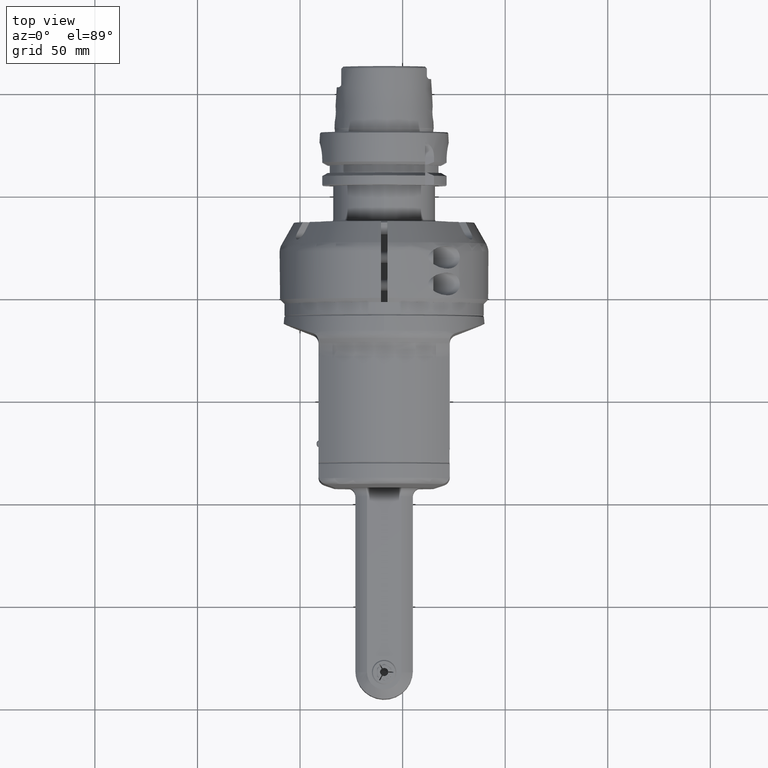
[diagram: clean part render]
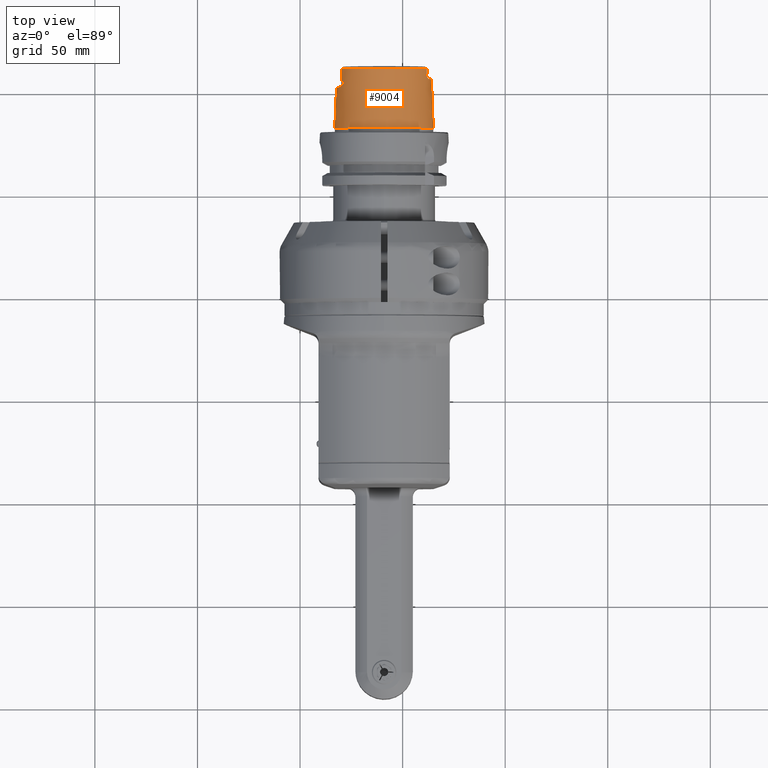
[diagram: same view with one face highlighted and labeled with its STEP entity id]
A machine part, top view. The second image highlights one B-rep face of the part: STEP entity #9004.
In plain terms, the highlighted conical surface has half-angle 2.868 deg.
Its self-contained STEP definition (entity closure, byte-faithful):
#135=FACE_BOUND('',#1355,.T.);
#136=FACE_BOUND('',#1356,.T.);
#243=(
BOUNDED_CURVE()
B_SPLINE_CURVE(2,(#14545,#14546,#14547),.UNSPECIFIED.,.F.,.F.)
B_SPLINE_CURVE_WITH_KNOTS((3,3),(1.86693789051421,2.5252025093279),
 .UNSPECIFIED.)
CURVE()
GEOMETRIC_REPRESENTATION_ITEM()
RATIONAL_B_SPLINE_CURVE((1.02439092202946,1.02616919741191,1.02616919750134))
REPRESENTATION_ITEM('')
);
#244=(
BOUNDED_CURVE()
B_SPLINE_CURVE(2,(#14614,#14615,#14616),.UNSPECIFIED.,.F.,.F.)
B_SPLINE_CURVE_WITH_KNOTS((3,3),(2.52520257553613,3.18346719434885),
 .UNSPECIFIED.)
CURVE()
GEOMETRIC_REPRESENTATION_ITEM()
RATIONAL_B_SPLINE_CURVE((1.02616919750134,1.0261691974119,1.02439092202946))
REPRESENTATION_ITEM('')
);
#599=CONICAL_SURFACE('',#9783,23.49739340079,0.0500570901447486);
#797=FACE_OUTER_BOUND('',#1354,.T.);
#1354=EDGE_LOOP('',(#6731,#6732,#6733,#6734,#6735,#6736,#6737,#6738,#6739,
#6740,#6741,#6742,#6743,#6744,#6745,#6746,#6747,#6748,#6749,#6750,#6751));
#1355=EDGE_LOOP('',(#6752,#6753));
#1356=EDGE_LOOP('',(#6754));
#1915=CIRCLE('',#9781,24.22021898401);
#1916=CIRCLE('',#9782,24.22021898401);
#1917=CIRCLE('',#9784,22.77456781756);
#1918=CIRCLE('',#9785,23.01805084955);
#1919=CIRCLE('',#9786,22.77456781756);
#1920=CIRCLE('',#9787,23.21844661614);
#1921=CIRCLE('',#9788,22.77456781756);
#2259=B_SPLINE_CURVE_WITH_KNOTS('',3,(#14474,#14475,#14476,#14477,#14478,
#14479,#14480,#14481),.UNSPECIFIED.,.F.,.F.,(4,2,2,4),(1.87852144760714,
1.96332966499537,2.14651647101209,2.20196364531662),.UNSPECIFIED.);
#2260=B_SPLINE_CURVE_WITH_KNOTS('',3,(#14483,#14484,#14485,#14486,#14487,
#14488,#14489,#14490,#14491,#14492,#14493,#14494,#14495,#14496),
 .UNSPECIFIED.,.F.,.F.,(4,2,2,2,2,2,4),(0.648088302085378,0.67504823879193,
0.706405860352622,0.747031442334294,0.813706573923428,0.931756672705542,
0.968140813905552),.UNSPECIFIED.);
#2261=B_SPLINE_CURVE_WITH_KNOTS('',3,(#14500,#14501,#14502,#14503,#14504,
#14505,#14506,#14507,#14508,#14509,#14510,#14511,#14512,#14513),
 .UNSPECIFIED.,.F.,.F.,(4,2,2,2,2,2,4),(0.250897982794745,0.32289928639896,
0.451677279406398,0.504038531696657,0.537850831835839,0.567600566613487,
0.5820221192563),.UNSPECIFIED.);
#2262=B_SPLINE_CURVE_WITH_KNOTS('',3,(#14515,#14516,#14517,#14518,#14519,
#14520,#14521,#14522),.UNSPECIFIED.,.F.,.F.,(4,2,2,4),(1.04367366398559,
1.09912083762025,1.28230764389029,1.36711586171919),.UNSPECIFIED.);
#2263=B_SPLINE_CURVE_WITH_KNOTS('',3,(#14526,#14527,#14528,#14529,#14530,
#14531,#14532,#14533,#14534,#14535,#14536,#14537,#14538,#14539,#14540,#14541,
#14542,#14543),.UNSPECIFIED.,.F.,.F.,(4,2,2,2,2,2,2,2,4),(1.62281865268316,
1.63031260903777,1.63780656539237,1.65279447810159,1.71646866782222,1.78014285754286,
1.96332966286606,2.14651646818926,2.20196364304312),.UNSPECIFIED.);
#2264=B_SPLINE_CURVE_WITH_KNOTS('',3,(#14549,#14550,#14551,#14552,#14553,
#14554,#14555,#14556,#14557,#14558,#14559,#14560,#14561,#14562,#14563,#14564,
#14565,#14566,#14567),.UNSPECIFIED.,.F.,.F.,(4,2,2,2,2,2,3,2,4),(0.591686858486119,
0.711318405574479,0.753394480811399,0.769620085407919,0.779298074344639,
0.784137068813,0.78897606328136,0.793827590149413,0.796896752134967),
 .UNSPECIFIED.);
#2265=B_SPLINE_CURVE_WITH_KNOTS('',3,(#14569,#14570,#14571,#14572,#14573,
#14574,#14575,#14576,#14577,#14578,#14579,#14580),.UNSPECIFIED.,.F.,.F.,
(4,2,2,2,2,4),(-1.35810253274609,-1.33001864997158,-1.27929112228705,-1.22120744000346,
-1.19655389716661,-1.18646391721583),.UNSPECIFIED.);
#2266=B_SPLINE_CURVE_WITH_KNOTS('',3,(#14584,#14585,#14586,#14587,#14588,
#14589,#14590,#14591,#14592,#14593),.UNSPECIFIED.,.F.,.F.,(4,2,2,2,4),(-0.500911046831581,
-0.481998817135151,-0.442781745818096,-0.333902719664991,-0.278648797669768),
 .UNSPECIFIED.);
#2267=B_SPLINE_CURVE_WITH_KNOTS('',3,(#14595,#14596,#14597,#14598,#14599,
#14600,#14601,#14602,#14603,#14604,#14605,#14606,#14607,#14608,#14609,#14610,
#14611,#14612),.UNSPECIFIED.,.F.,.F.,(4,2,2,2,2,2,2,2,4),(0.386476945536789,
0.389546107522341,0.394397634390394,0.399236628858755,0.404075623327115,
0.413753612263837,0.429979216860358,0.472055292097276,0.591686839185636),
 .UNSPECIFIED.);
#2268=B_SPLINE_CURVE_WITH_KNOTS('',3,(#14618,#14619,#14620,#14621,#14622,
#14623,#14624,#14625,#14626,#14627,#14628,#14629,#14630,#14631,#14632,#14633,
#14634,#14635),.UNSPECIFIED.,.F.,.F.,(4,2,2,2,2,2,2,2,4),(1.04367366561104,
1.09912083861657,1.2823076446389,1.46549445066122,1.5291686406059,1.59284283055058,
1.60783074329144,1.61532469966187,1.6228186560323),.UNSPECIFIED.);
#2269=B_SPLINE_CURVE_WITH_KNOTS('',3,(#14639,#14640,#14641,#14642,#14643,
#14644,#14645,#14646,#14647,#14648,#14649,#14650,#14651,#14652,#14653,#14654,
#14655,#14656,#14657),.UNSPECIFIED.,.F.,.F.,(4,2,2,2,3,2,2,2,4),(-0.56247523473426,
-0.421758779612593,-0.281042324490925,-0.140521162245463,0.,0.142680728235708,
0.285361456471416,0.427838019281762,0.570314582092107),.UNSPECIFIED.);
#2270=B_SPLINE_CURVE_WITH_KNOTS('',3,(#14658,#14659,#14660,#14661,#14662,
#14663,#14664,#14665,#14666,#14667,#14668,#14669,#14670,#14671,#14672,#14673,
#14674,#14675),.UNSPECIFIED.,.F.,.F.,(4,2,2,2,2,2,2,2,4),(0.570314582092107,
0.712791144902453,0.855267707712798,0.997948435948506,1.14062916418421,
1.28115032642968,1.42167148867514,1.56238794379681,1.70310439891847),
 .UNSPECIFIED.);
#2271=B_SPLINE_CURVE_WITH_KNOTS('',3,(#14677,#14678,#14679,#14680,#14681,
#14682,#14683,#14684,#14685,#14686,#14687,#14688,#14689,#14690,#14691,#14692,
#14693,#14694,#14695,#14696,#14697,#14698,#14699,#14700,#14701,#14702,#14703,
#14704,#14705,#14706,#14707,#14708,#14709,#14710),.UNSPECIFIED.,.T.,.F.,
(4,2,2,2,2,2,2,2,2,2,2,2,2,2,2,2,4),(-2.26557963365273,-2.12505847140727,
-1.98453730916181,-1.84382085404014,-1.70310439891847,-1.56238794379681,
-1.42167148867514,-1.28115032642968,-1.14062916418421,-0.997948435948507,
-0.855267707712798,-0.712791144902453,-0.570314582092107,-0.427838019281762,
-0.285361456471416,-0.142680728235708,0.),.UNSPECIFIED.);
#2582=LINE('',#14470,#3230);
#3230=VECTOR('',#11210,23.49739340079);
#3966=VERTEX_POINT('',#14463);
#3967=VERTEX_POINT('',#14464);
#3968=VERTEX_POINT('',#14469);
#3969=VERTEX_POINT('',#14471);
#3970=VERTEX_POINT('',#14473);
#3971=VERTEX_POINT('',#14482);
#3972=VERTEX_POINT('',#14497);
#3973=VERTEX_POINT('',#14499);
#3974=VERTEX_POINT('',#14514);
#3975=VERTEX_POINT('',#14523);
#3976=VERTEX_POINT('',#14525);
#3977=VERTEX_POINT('',#14544);
#3978=VERTEX_POINT('',#14548);
#3979=VERTEX_POINT('',#14568);
#3980=VERTEX_POINT('',#14581);
#3981=VERTEX_POINT('',#14583);
#3982=VERTEX_POINT('',#14594);
#3983=VERTEX_POINT('',#14613);
#3984=VERTEX_POINT('',#14617);
#3985=VERTEX_POINT('',#14637);
#3986=VERTEX_POINT('',#14638);
#3987=VERTEX_POINT('',#14676);
#4993=EDGE_CURVE('',#3966,#3967,#1915,.T.);
#4994=EDGE_CURVE('',#3967,#3966,#1916,.T.);
#4996=EDGE_CURVE('',#3966,#3968,#2582,.T.);
#4997=EDGE_CURVE('',#3968,#3969,#1917,.T.);
#4998=EDGE_CURVE('',#3970,#3969,#2259,.T.);
#4999=EDGE_CURVE('',#3970,#3971,#2260,.T.);
#5000=EDGE_CURVE('',#3972,#3971,#1918,.T.);
#5001=EDGE_CURVE('',#3972,#3973,#2261,.T.);
#5002=EDGE_CURVE('',#3974,#3973,#2262,.T.);
#5003=EDGE_CURVE('',#3975,#3974,#1919,.T.);
#5004=EDGE_CURVE('',#3976,#3975,#2263,.T.);
#5005=EDGE_CURVE('',#3977,#3976,#243,.T.);
#5006=EDGE_CURVE('',#3978,#3977,#2264,.T.);
#5007=EDGE_CURVE('',#3979,#3978,#2265,.T.);
#5008=EDGE_CURVE('',#3980,#3979,#1920,.T.);
#5009=EDGE_CURVE('',#3981,#3980,#2266,.T.);
#5010=EDGE_CURVE('',#3982,#3981,#2267,.T.);
#5011=EDGE_CURVE('',#3983,#3982,#244,.T.);
#5012=EDGE_CURVE('',#3984,#3983,#2268,.T.);
#5013=EDGE_CURVE('',#3984,#3968,#1921,.T.);
#5014=EDGE_CURVE('',#3985,#3986,#2269,.T.);
#5015=EDGE_CURVE('',#3986,#3985,#2270,.T.);
#5016=EDGE_CURVE('',#3987,#3987,#2271,.T.);
#6731=ORIENTED_EDGE('',*,*,#4993,.T.);
#6732=ORIENTED_EDGE('',*,*,#4994,.T.);
#6733=ORIENTED_EDGE('',*,*,#4996,.T.);
#6734=ORIENTED_EDGE('',*,*,#4997,.T.);
#6735=ORIENTED_EDGE('',*,*,#4998,.F.);
#6736=ORIENTED_EDGE('',*,*,#4999,.T.);
#6737=ORIENTED_EDGE('',*,*,#5000,.F.);
#6738=ORIENTED_EDGE('',*,*,#5001,.T.);
#6739=ORIENTED_EDGE('',*,*,#5002,.F.);
#6740=ORIENTED_EDGE('',*,*,#5003,.F.);
#6741=ORIENTED_EDGE('',*,*,#5004,.F.);
#6742=ORIENTED_EDGE('',*,*,#5005,.F.);
#6743=ORIENTED_EDGE('',*,*,#5006,.F.);
#6744=ORIENTED_EDGE('',*,*,#5007,.F.);
#6745=ORIENTED_EDGE('',*,*,#5008,.F.);
#6746=ORIENTED_EDGE('',*,*,#5009,.F.);
#6747=ORIENTED_EDGE('',*,*,#5010,.F.);
#6748=ORIENTED_EDGE('',*,*,#5011,.F.);
#6749=ORIENTED_EDGE('',*,*,#5012,.F.);
#6750=ORIENTED_EDGE('',*,*,#5013,.T.);
#6751=ORIENTED_EDGE('',*,*,#4996,.F.);
#6752=ORIENTED_EDGE('',*,*,#5014,.T.);
#6753=ORIENTED_EDGE('',*,*,#5015,.T.);
#6754=ORIENTED_EDGE('',*,*,#5016,.T.);
#9004=ADVANCED_FACE('',(#797,#135,#136),#599,.T.);
#9781=AXIS2_PLACEMENT_3D('',#14465,#11203,#11204);
#9782=AXIS2_PLACEMENT_3D('',#14466,#11205,#11206);
#9783=AXIS2_PLACEMENT_3D('',#14468,#11208,#11209);
#9784=AXIS2_PLACEMENT_3D('',#14472,#11211,#11212);
#9785=AXIS2_PLACEMENT_3D('',#14498,#11213,#11214);
#9786=AXIS2_PLACEMENT_3D('',#14524,#11215,#11216);
#9787=AXIS2_PLACEMENT_3D('',#14582,#11217,#11218);
#9788=AXIS2_PLACEMENT_3D('',#14636,#11219,#11220);
#11203=DIRECTION('center_axis',(0.,0.,1.));
#11204=DIRECTION('ref_axis',(-0.707106781186547,-0.707106781186547,0.));
#11205=DIRECTION('center_axis',(0.,0.,1.));
#11206=DIRECTION('ref_axis',(-0.707106781186547,-0.707106781186547,0.));
#11208=DIRECTION('center_axis',(0.,0.,-1.));
#11209=DIRECTION('ref_axis',(0.707106781186548,0.707106781186548,0.));
#11210=DIRECTION('',(0.0353809278297194,0.0353809278297194,0.998747405449354));
#11211=DIRECTION('center_axis',(0.,0.,-1.));
#11212=DIRECTION('ref_axis',(-0.707106781186547,-0.707106781186547,0.));
#11213=DIRECTION('center_axis',(0.,0.,1.));
#11214=DIRECTION('ref_axis',(0.310247952795186,0.950655672568357,0.));
#11215=DIRECTION('center_axis',(0.,0.,1.));
#11216=DIRECTION('ref_axis',(1.,0.,0.));
#11217=DIRECTION('center_axis',(0.,0.,1.));
#11218=DIRECTION('ref_axis',(-0.318847860778003,-0.94780590928591,0.));
#11219=DIRECTION('center_axis',(0.,0.,-1.));
#11220=DIRECTION('ref_axis',(-0.707106781186547,-0.707106781186547,0.));
#14463=CARTESIAN_POINT('',(-17.12628108542,-17.12628108542,52.99912114642));
#14464=CARTESIAN_POINT('',(17.1262810854204,17.1262810854204,52.9991211464186));
#14465=CARTESIAN_POINT('Origin',(0.,0.,52.99912114642));
#14466=CARTESIAN_POINT('Origin',(0.,0.,52.99912114642));
#14468=CARTESIAN_POINT('Origin',(0.,0.,67.427082286));
#14469=CARTESIAN_POINT('',(-16.1040513423943,-16.1040513423943,81.8550434255811));
#14470=CARTESIAN_POINT('',(-16.6151662139066,-16.6151662139066,67.427082286));
#14471=CARTESIAN_POINT('',(-9.117654363463,20.86981835535,81.85504342558));
#14472=CARTESIAN_POINT('Origin',(0.,0.,81.85504342558));
#14473=CARTESIAN_POINT('',(-9.610775788882,20.83290092553,78.495));
#14474=CARTESIAN_POINT('Ctrl Pts',(-9.61077578889373,20.8329009255282,78.4950000000022));
#14475=CARTESIAN_POINT('Ctrl Pts',(-9.55850786932113,20.8413724806425,78.7784904282741));
#14476=CARTESIAN_POINT('Ctrl Pts',(-9.50986699995181,20.8478073405863,79.0652482027057));
#14477=CARTESIAN_POINT('Ctrl Pts',(-9.36366646758571,20.863821774484,79.9801565585002));
#14478=CARTESIAN_POINT('Ctrl Pts',(-9.27459532051356,20.8685085877053,80.6183430761416));
#14479=CARTESIAN_POINT('Ctrl Pts',(-9.16631082824764,20.8700624475187,81.4611270539247));
#14480=CARTESIAN_POINT('Ctrl Pts',(-9.14172559906328,20.8700887194267,81.6577434629838));
#14481=CARTESIAN_POINT('Ctrl Pts',(-9.11765436347179,20.8698183553477,81.8550434255811));
#14482=CARTESIAN_POINT('',(-7.141303153407,21.88224061159,76.995));
#14483=CARTESIAN_POINT('Ctrl Pts',(-9.61077578889373,20.8329009255283,78.4950000000022));
#14484=CARTESIAN_POINT('Ctrl Pts',(-9.61973394568024,20.8314489924963,78.4464128030236));
#14485=CARTESIAN_POINT('Ctrl Pts',(-9.62073721834895,20.8336401790428,78.3983101102748));
#14486=CARTESIAN_POINT('Ctrl Pts',(-9.60554521151347,20.8464278881812,78.2935608657479));
#14487=CARTESIAN_POINT('Ctrl Pts',(-9.58707640182997,20.8578578636761,78.240706969117));
#14488=CARTESIAN_POINT('Ctrl Pts',(-9.53199317457096,20.8893183107881,78.1277996840116));
#14489=CARTESIAN_POINT('Ctrl Pts',(-9.48448009125569,20.9150585072333,78.0552687868475));
#14490=CARTESIAN_POINT('Ctrl Pts',(-9.28874691392544,21.0151373924235,77.8336478720117));
#14491=CARTESIAN_POINT('Ctrl Pts',(-9.11993002449012,21.0971469157375,77.693710144837));
#14492=CARTESIAN_POINT('Ctrl Pts',(-8.60152235861784,21.3346001590644,77.3471930600794));
#14493=CARTESIAN_POINT('Ctrl Pts',(-8.1402860872223,21.5309104117372,77.1244955955363));
#14494=CARTESIAN_POINT('Ctrl Pts',(-7.45228581516806,21.77828244444,77.0080869359226));
#14495=CARTESIAN_POINT('Ctrl Pts',(-7.29415485282921,21.8323572224781,76.9949999999997));
#14496=CARTESIAN_POINT('Ctrl Pts',(-7.14130315340726,21.8822406115908,76.995));
#14497=CARTESIAN_POINT('',(7.141303153408,21.88224061159,76.995));
#14498=CARTESIAN_POINT('Origin',(0.,0.,76.995));
#14499=CARTESIAN_POINT('',(9.610775788879,20.83290092553,78.49500000001));
#14500=CARTESIAN_POINT('Ctrl Pts',(7.14130315340816,21.8822406115905,76.995));
#14501=CARTESIAN_POINT('Ctrl Pts',(7.41363694008591,21.7933640580372,76.9949999999997));
#14502=CARTESIAN_POINT('Ctrl Pts',(7.68824455746597,21.6957996581471,77.0366121624606));
#14503=CARTESIAN_POINT('Ctrl Pts',(8.43441100564512,21.409444593117,77.2507930771049));
#14504=CARTESIAN_POINT('Ctrl Pts',(8.84932399272184,21.2243799959674,77.4905235026044));
#14505=CARTESIAN_POINT('Ctrl Pts',(9.24395926600556,21.0365866986543,77.8012372911228));
#14506=CARTESIAN_POINT('Ctrl Pts',(9.36659326279732,20.9761032068553,77.9116305840195));
#14507=CARTESIAN_POINT('Ctrl Pts',(9.52178759584923,20.8950552401853,78.109619990408));
#14508=CARTESIAN_POINT('Ctrl Pts',(9.55958934574004,20.8739760220774,78.177079648045));
#14509=CARTESIAN_POINT('Ctrl Pts',(9.60408350993952,20.8472940080879,78.290275231779));
#14510=CARTESIAN_POINT('Ctrl Pts',(9.61743794135666,20.8380106848694,78.3466771998469));
#14511=CARTESIAN_POINT('Ctrl Pts',(9.61869765129533,20.8324598638865,78.4367327814785));
#14512=CARTESIAN_POINT('Ctrl Pts',(9.61613593125912,20.8320321566572,78.4659276920366));
#14513=CARTESIAN_POINT('Ctrl Pts',(9.61077578889185,20.8329009255286,78.4950000000124));
#14514=CARTESIAN_POINT('',(9.117654363463,20.86981835535,81.85504342558));
#14515=CARTESIAN_POINT('Ctrl Pts',(9.11765436347179,20.8698183553477,81.8550434255811));
#14516=CARTESIAN_POINT('Ctrl Pts',(9.1417255987706,20.8700887194234,81.6577434653827));
#14517=CARTESIAN_POINT('Ctrl Pts',(9.16631082764981,20.8700624475193,81.4611270587064));
#14518=CARTESIAN_POINT('Ctrl Pts',(9.27459531965703,20.8685085877441,80.6183430823798));
#14519=CARTESIAN_POINT('Ctrl Pts',(9.36366646679598,20.8638217745453,79.9801565638432));
#14520=CARTESIAN_POINT('Ctrl Pts',(9.50986699945028,20.8478073406529,79.0652482056583));
#14521=CARTESIAN_POINT('Ctrl Pts',(9.55850786905097,20.8413724806862,78.77849042974));
#14522=CARTESIAN_POINT('Ctrl Pts',(9.61077578889186,20.8329009255285,78.4950000000124));
#14523=CARTESIAN_POINT('',(9.117654363498,-20.86981835533,81.85504342558));
#14524=CARTESIAN_POINT('Origin',(0.,0.,81.85504342558));
#14525=CARTESIAN_POINT('',(10.45563865919,-20.55704259638,76.09328716012));
#14526=CARTESIAN_POINT('Ctrl Pts',(10.4556386714692,-20.5570425901345,76.0932871601816));
#14527=CARTESIAN_POINT('Ctrl Pts',(10.433373271905,-20.5683671261879,76.0932871622689));
#14528=CARTESIAN_POINT('Ctrl Pts',(10.4121101512896,-20.5788186542378,76.0989425576007));
#14529=CARTESIAN_POINT('Ctrl Pts',(10.3716348829625,-20.5981622584297,76.118292714809));
#14530=CARTESIAN_POINT('Ctrl Pts',(10.3524152746639,-20.6070594656734,76.1319667330902));
#14531=CARTESIAN_POINT('Ctrl Pts',(10.2980927518617,-20.6315611276163,76.1806691356942));
#14532=CARTESIAN_POINT('Ctrl Pts',(10.2662245706467,-20.6450434356398,76.2231272565501));
#14533=CARTESIAN_POINT('Ctrl Pts',(10.1277106806721,-20.7016700091884,76.4384406302078));
#14534=CARTESIAN_POINT('Ctrl Pts',(10.0539998399404,-20.7253784620132,76.653216249338));
#14535=CARTESIAN_POINT('Ctrl Pts',(9.91728957146815,-20.7668254275143,77.0912510935108));
#14536=CARTESIAN_POINT('Ctrl Pts',(9.85990522650072,-20.7815789717773,77.3165198345349));
#14537=CARTESIAN_POINT('Ctrl Pts',(9.67204980871616,-20.8259087989342,78.1164324681181));
#14538=CARTESIAN_POINT('Ctrl Pts',(9.56353591522435,-20.8419285842929,78.7293934819676));
#14539=CARTESIAN_POINT('Ctrl Pts',(9.36366646838923,-20.8638217744217,79.9801565530635));
#14540=CARTESIAN_POINT('Ctrl Pts',(9.27459532138512,-20.8685085876657,80.6183430697941));
#14541=CARTESIAN_POINT('Ctrl Pts',(9.16631082885614,-20.8700624475181,81.4611270490578));
#14542=CARTESIAN_POINT('Ctrl Pts',(9.14172559936142,-20.87008871943,81.6577434605401));
#14543=CARTESIAN_POINT('Ctrl Pts',(9.11765436347231,-20.8698183553477,81.8550434255769));
#14544=CARTESIAN_POINT('',(12.17012447178,-19.685027866,74.495));
#14545=CARTESIAN_POINT('Ctrl Pts',(12.1701244718009,-19.6850278659878,74.495000000015));
#14546=CARTESIAN_POINT('Ctrl Pts',(11.3113960268442,-20.1217907997497,76.0932870799412));
#14547=CARTESIAN_POINT('Ctrl Pts',(10.4556386592447,-20.5570425963522,76.0932871601786));
#14548=CARTESIAN_POINT('',(10.50463704262,-20.65337930986,73.93592683567));
#14549=CARTESIAN_POINT('Ctrl Pts',(10.5046369566053,-20.6533793536115,73.9359268356607));
#14550=CARTESIAN_POINT('Ctrl Pts',(10.8600759507545,-20.4725974305277,73.9359268403847));
#14551=CARTESIAN_POINT('Ctrl Pts',(11.2787331001345,-20.2429928414845,73.9674745516439));
#14552=CARTESIAN_POINT('Ctrl Pts',(11.7324566113102,-19.9736961951904,74.0777592252347));
#14553=CARTESIAN_POINT('Ctrl Pts',(11.8712980961836,-19.8889135428888,74.1209018297978));
#14554=CARTESIAN_POINT('Ctrl Pts',(12.0215908841504,-19.7935089562315,74.1988612235576));
#14555=CARTESIAN_POINT('Ctrl Pts',(12.0699511150093,-19.7622825990608,74.2288366634653));
#14556=CARTESIAN_POINT('Ctrl Pts',(12.1278552591121,-19.7237601065718,74.28000932448));
#14557=CARTESIAN_POINT('Ctrl Pts',(12.1498329028668,-19.7088419471517,74.3034554181834));
#14558=CARTESIAN_POINT('Ctrl Pts',(12.1738756749758,-19.691608797045,74.3439408650348));
#14559=CARTESIAN_POINT('Ctrl Pts',(12.1804656176304,-19.686685553039,74.3582973863252));
#14560=CARTESIAN_POINT('Ctrl Pts',(12.189279508972,-19.6794566962155,74.3883818778479));
#14561=CARTESIAN_POINT('Ctrl Pts',(12.1915238238229,-19.6771391685607,74.4041010131458));
#14562=CARTESIAN_POINT('Ctrl Pts',(12.1910987489841,-19.6764530970834,74.4202107911376));
#14563=CARTESIAN_POINT('Ctrl Pts',(12.1906725732538,-19.6757652487655,74.4363622914702));
#14564=CARTESIAN_POINT('Ctrl Pts',(12.1875860130507,-19.6767494293033,74.452121314436));
#14565=CARTESIAN_POINT('Ctrl Pts',(12.1790827163535,-19.6805617300193,74.4767582736719));
#14566=CARTESIAN_POINT('Ctrl Pts',(12.1749388286616,-19.6825792075815,74.4860393973536));
#14567=CARTESIAN_POINT('Ctrl Pts',(12.1701244717913,-19.6850278659941,74.4950000000077));
#14568=CARTESIAN_POINT('',(7.403152034143,-22.00658090721,72.995));
#14569=CARTESIAN_POINT('Ctrl Pts',(7.4031520341448,-22.0065809072154,72.995));
#14570=CARTESIAN_POINT('Ctrl Pts',(7.58729074979955,-21.9446354867472,72.9949999999998));
#14571=CARTESIAN_POINT('Ctrl Pts',(7.79894073569062,-21.8700373454034,73.0119514990181));
#14572=CARTESIAN_POINT('Ctrl Pts',(8.46885044146755,-21.6158859211317,73.1415909625734));
#14573=CARTESIAN_POINT('Ctrl Pts',(8.84986186883586,-21.4523054246618,73.2927735163923));
#14574=CARTESIAN_POINT('Ctrl Pts',(9.52003982973984,-21.1477208781622,73.5943097197334));
#14575=CARTESIAN_POINT('Ctrl Pts',(9.816480940296,-21.0011530218963,73.7555258519646));
#14576=CARTESIAN_POINT('Ctrl Pts',(10.1838806620518,-20.8163823818215,73.8891050834383));
#14577=CARTESIAN_POINT('Ctrl Pts',(10.2843617168617,-20.7653534048569,73.9160616337909));
#14578=CARTESIAN_POINT('Ctrl Pts',(10.4242598914347,-20.6942562737177,73.9333926062766));
#14579=CARTESIAN_POINT('Ctrl Pts',(10.4644033621003,-20.6738427993982,73.9359268351215));
#14580=CARTESIAN_POINT('Ctrl Pts',(10.5046370426213,-20.6533793098626,73.9359268356565));
#14581=CARTESIAN_POINT('',(-7.403152034143,-22.00658090721,72.995));
#14582=CARTESIAN_POINT('Origin',(0.,0.,72.995));
#14583=CARTESIAN_POINT('',(-10.50463704262,-20.65337930986,73.93592683567));
#14584=CARTESIAN_POINT('Ctrl Pts',(-10.5046370426213,-20.6533793098626,
73.9359268356565));
#14585=CARTESIAN_POINT('Ctrl Pts',(-10.4428760007516,-20.6847919576156,
73.9359268348353));
#14586=CARTESIAN_POINT('Ctrl Pts',(-10.3818148893931,-20.7158427666053,
73.929945219954));
#14587=CARTESIAN_POINT('Ctrl Pts',(-10.1907910100508,-20.8128316240175,
73.8946590030937));
#14588=CARTESIAN_POINT('Ctrl Pts',(-10.0580924634214,-20.8800772428558,
73.8474551147508));
#14589=CARTESIAN_POINT('Ctrl Pts',(-9.49261363253437,-21.1610245006452,
73.6027685141787));
#14590=CARTESIAN_POINT('Ctrl Pts',(-8.94733733032288,-21.4217726730621,
73.2850020362254));
#14591=CARTESIAN_POINT('Ctrl Pts',(-7.93109170591475,-21.8234662449697,
73.0232306177787));
#14592=CARTESIAN_POINT('Ctrl Pts',(-7.64156803444037,-21.9263762672941,
72.9949999999998));
#14593=CARTESIAN_POINT('Ctrl Pts',(-7.4031520341448,-22.0065809072154,72.995));
#14594=CARTESIAN_POINT('',(-12.17012447178,-19.685027866,74.495));
#14595=CARTESIAN_POINT('Ctrl Pts',(-12.1701244717913,-19.6850278659941,
74.4950000000077));
#14596=CARTESIAN_POINT('Ctrl Pts',(-12.1749388286615,-19.6825792075816,
74.4860393973536));
#14597=CARTESIAN_POINT('Ctrl Pts',(-12.1790827163535,-19.6805617300192,
74.4767582736719));
#14598=CARTESIAN_POINT('Ctrl Pts',(-12.1875860130507,-19.6767494293032,
74.452121314436));
#14599=CARTESIAN_POINT('Ctrl Pts',(-12.1906725732538,-19.6757652487655,
74.4363622914702));
#14600=CARTESIAN_POINT('Ctrl Pts',(-12.1915238238229,-19.6771391685607,
74.4041010131458));
#14601=CARTESIAN_POINT('Ctrl Pts',(-12.189279508972,-19.6794566962155,74.3883818778479));
#14602=CARTESIAN_POINT('Ctrl Pts',(-12.1804656176304,-19.686685553039,74.3582973863253));
#14603=CARTESIAN_POINT('Ctrl Pts',(-12.1738756749759,-19.691608797045,74.3439408650348));
#14604=CARTESIAN_POINT('Ctrl Pts',(-12.1498329028668,-19.7088419471517,
74.3034554181834));
#14605=CARTESIAN_POINT('Ctrl Pts',(-12.127855259112,-19.7237601065718,74.28000932448));
#14606=CARTESIAN_POINT('Ctrl Pts',(-12.0699511150093,-19.7622825990608,
74.2288366634653));
#14607=CARTESIAN_POINT('Ctrl Pts',(-12.0215908841504,-19.7935089562315,
74.1988612235575));
#14608=CARTESIAN_POINT('Ctrl Pts',(-11.8712980961836,-19.8889135428888,
74.1209018297977));
#14609=CARTESIAN_POINT('Ctrl Pts',(-11.7324566113102,-19.9736961951904,
74.0777592252347));
#14610=CARTESIAN_POINT('Ctrl Pts',(-11.2787331001345,-20.2429928414845,
73.9674745516439));
#14611=CARTESIAN_POINT('Ctrl Pts',(-10.8600759516147,-20.472597432219,73.9359268356607));
#14612=CARTESIAN_POINT('Ctrl Pts',(-10.5046369566053,-20.6533793536115,
73.9359268356607));
#14613=CARTESIAN_POINT('',(-10.45563865919,-20.55704259638,76.09328716012));
#14614=CARTESIAN_POINT('Ctrl Pts',(-10.4556386592471,-20.557042596351,76.0932871601786));
#14615=CARTESIAN_POINT('Ctrl Pts',(-11.3113960268454,-20.121790799749,76.0932870799389));
#14616=CARTESIAN_POINT('Ctrl Pts',(-12.1701244718009,-19.6850278659878,
74.4950000000151));
#14617=CARTESIAN_POINT('',(-9.117654363463,-20.86981835535,81.85504342558));
#14618=CARTESIAN_POINT('Ctrl Pts',(-9.1176543634718,-20.8698183553477,81.855043425581));
#14619=CARTESIAN_POINT('Ctrl Pts',(-9.14172559855336,-20.8700887194209,
81.6577434671633));
#14620=CARTESIAN_POINT('Ctrl Pts',(-9.16631082720605,-20.8700624475197,
81.4611270622557));
#14621=CARTESIAN_POINT('Ctrl Pts',(-9.27459531902123,-20.8685085877729,
80.6183430870102));
#14622=CARTESIAN_POINT('Ctrl Pts',(-9.36366646620984,-20.8638217745908,
79.9801565678092));
#14623=CARTESIAN_POINT('Ctrl Pts',(-9.56353591346666,-20.8419285845549,
78.7293934918597));
#14624=CARTESIAN_POINT('Ctrl Pts',(-9.67204980718885,-20.8259087992307,
78.1164324756268));
#14625=CARTESIAN_POINT('Ctrl Pts',(-9.85990522537639,-20.7815789720648,
77.3165198389731));
#14626=CARTESIAN_POINT('Ctrl Pts',(-9.91728957045448,-20.7668254277979,
77.0912510971303));
#14627=CARTESIAN_POINT('Ctrl Pts',(-10.0539998392007,-20.7253784622613,
76.653216251336));
#14628=CARTESIAN_POINT('Ctrl Pts',(-10.127710680064,-20.7016700094214,76.4384406313955));
#14629=CARTESIAN_POINT('Ctrl Pts',(-10.266224570361,-20.6450434357602,76.2231272569369));
#14630=CARTESIAN_POINT('Ctrl Pts',(-10.2980927516157,-20.6315611277239,
76.1806691359679));
#14631=CARTESIAN_POINT('Ctrl Pts',(-10.3524152744901,-20.6070594657535,
76.1319667332192));
#14632=CARTESIAN_POINT('Ctrl Pts',(-10.3716348828157,-20.5981622584988,
76.1182927148965));
#14633=CARTESIAN_POINT('Ctrl Pts',(-10.4121101512061,-20.5788186542789,
76.0989425576234));
#14634=CARTESIAN_POINT('Ctrl Pts',(-10.4333732719121,-20.5683671263183,
76.0932871601816));
#14635=CARTESIAN_POINT('Ctrl Pts',(-10.4556386714692,-20.5570425901345,
76.0932871601816));
#14636=CARTESIAN_POINT('Origin',(0.,0.,81.85504342558));
#14637=CARTESIAN_POINT('',(0.,-23.68186182637,63.745));
#14638=CARTESIAN_POINT('',(4.59242549680257E-16,-24.0576038887331,56.245));
#14639=CARTESIAN_POINT('Ctrl Pts',(-1.11022302462516E-15,-23.6818618263774,
63.745));
#14640=CARTESIAN_POINT('Ctrl Pts',(0.469054850405556,-23.6818618263774,
63.745));
#14641=CARTESIAN_POINT('Ctrl Pts',(0.969264895238196,-23.6711804503687,
63.6516215303589));
#14642=CARTESIAN_POINT('Ctrl Pts',(1.88978114724752,-23.6345973217103,63.272053954328));
#14643=CARTESIAN_POINT('Ctrl Pts',(2.31012703498402,-23.6094750319828,62.9858863561182));
#14644=CARTESIAN_POINT('Ctrl Pts',(2.97462220634907,-23.5683046058624,62.3259014900085));
#14645=CARTESIAN_POINT('Ctrl Pts',(3.2635247030736,-23.5496143871783,61.9079130783974));
#14646=CARTESIAN_POINT('Ctrl Pts',(3.64932097112701,-23.5393999048604,60.9911356810231));
#14647=CARTESIAN_POINT('Ctrl Pts',(3.74620169322924,-23.5487000186239,60.4923322043523));
#14648=CARTESIAN_POINT('Ctrl Pts',(3.74988384644156,-23.5718461085892,60.024515050341));
#14649=CARTESIAN_POINT('Ctrl Pts',(3.75362258794793,-23.5953479137215,59.5495083598975));
#14650=CARTESIAN_POINT('Ctrl Pts',(3.66191293850585,-23.636207974791,59.0436113203454));
#14651=CARTESIAN_POINT('Ctrl Pts',(3.28250562870907,-23.738916568537,58.1135366250423));
#14652=CARTESIAN_POINT('Ctrl Pts',(2.99487058324756,-23.7999226154427,57.6892405861678));
#14653=CARTESIAN_POINT('Ctrl Pts',(2.32973588252695,-23.9079449341569,57.0188500581351));
#14654=CARTESIAN_POINT('Ctrl Pts',(1.90776874445894,-23.9620973119612,56.7276842310968));
#14655=CARTESIAN_POINT('Ctrl Pts',(0.98040819673589,-24.0373189681924,56.3407239031291));
#14656=CARTESIAN_POINT('Ctrl Pts',(0.474921876034486,-24.0576038887331,
56.245));
#14657=CARTESIAN_POINT('Ctrl Pts',(6.93889390390723E-16,-24.0576038887331,
56.245));
#14658=CARTESIAN_POINT('Ctrl Pts',(0.,-24.0576038887331,56.245));
#14659=CARTESIAN_POINT('Ctrl Pts',(-0.474921876034485,-24.0576038887331,
56.245));
#14660=CARTESIAN_POINT('Ctrl Pts',(-0.980408196735887,-24.0373189681924,
56.3407239031291));
#14661=CARTESIAN_POINT('Ctrl Pts',(-1.90776874445894,-23.9620973119612,
56.7276842310968));
#14662=CARTESIAN_POINT('Ctrl Pts',(-2.32973588252695,-23.9079449341569,
57.0188500581351));
#14663=CARTESIAN_POINT('Ctrl Pts',(-2.99487058324756,-23.7999226154427,
57.6892405861678));
#14664=CARTESIAN_POINT('Ctrl Pts',(-3.28250562870908,-23.738916568537,58.1135366250423));
#14665=CARTESIAN_POINT('Ctrl Pts',(-3.66191293850586,-23.6362079747911,
59.0436113203454));
#14666=CARTESIAN_POINT('Ctrl Pts',(-3.75362258794793,-23.5953479137215,
59.5495083598975));
#14667=CARTESIAN_POINT('Ctrl Pts',(-3.74620169322924,-23.5487000186239,
60.4923322043523));
#14668=CARTESIAN_POINT('Ctrl Pts',(-3.64932097112701,-23.5393999048604,
60.9911356810231));
#14669=CARTESIAN_POINT('Ctrl Pts',(-3.2635247030736,-23.5496143871783,61.9079130783974));
#14670=CARTESIAN_POINT('Ctrl Pts',(-2.97462220634907,-23.5683046058624,
62.3259014900085));
#14671=CARTESIAN_POINT('Ctrl Pts',(-2.31012703498402,-23.6094750319828,
62.9858863561182));
#14672=CARTESIAN_POINT('Ctrl Pts',(-1.88978114724752,-23.6345973217103,
63.272053954328));
#14673=CARTESIAN_POINT('Ctrl Pts',(-0.9692648952382,-23.6711804503687,63.6516215303589));
#14674=CARTESIAN_POINT('Ctrl Pts',(-0.469054850405557,-23.6818618263774,
63.745));
#14675=CARTESIAN_POINT('Ctrl Pts',(-9.71445146547012E-16,-23.6818618263774,
63.745));
#14676=CARTESIAN_POINT('',(0.,24.05760388874,56.24499999999));
#14677=CARTESIAN_POINT('Ctrl Pts',(3.74988384644156,23.5718461085892,60.024515050341));
#14678=CARTESIAN_POINT('Ctrl Pts',(3.74620169322924,23.5487000186238,60.4923322043523));
#14679=CARTESIAN_POINT('Ctrl Pts',(3.64932097112701,23.5393999048604,60.9911356810231));
#14680=CARTESIAN_POINT('Ctrl Pts',(3.26352470307359,23.5496143871783,61.9079130783974));
#14681=CARTESIAN_POINT('Ctrl Pts',(2.97462220634907,23.5683046058624,62.3259014900085));
#14682=CARTESIAN_POINT('Ctrl Pts',(2.31012703498402,23.6094750319828,62.9858863561182));
#14683=CARTESIAN_POINT('Ctrl Pts',(1.88978114724752,23.6345973217103,63.272053954328));
#14684=CARTESIAN_POINT('Ctrl Pts',(0.969264895238196,23.6711804503687,63.6516215303589));
#14685=CARTESIAN_POINT('Ctrl Pts',(0.469054850405556,23.6818618263774,63.745));
#14686=CARTESIAN_POINT('Ctrl Pts',(-0.469054850405558,23.6818618263774,
63.745));
#14687=CARTESIAN_POINT('Ctrl Pts',(-0.969264895238197,23.6711804503687,
63.6516215303589));
#14688=CARTESIAN_POINT('Ctrl Pts',(-1.88978114724752,23.6345973217103,63.272053954328));
#14689=CARTESIAN_POINT('Ctrl Pts',(-2.31012703498402,23.6094750319828,62.9858863561182));
#14690=CARTESIAN_POINT('Ctrl Pts',(-2.97462220634907,23.5683046058624,62.3259014900085));
#14691=CARTESIAN_POINT('Ctrl Pts',(-3.2635247030736,23.5496143871783,61.9079130783974));
#14692=CARTESIAN_POINT('Ctrl Pts',(-3.64932097112701,23.5393999048604,60.9911356810231));
#14693=CARTESIAN_POINT('Ctrl Pts',(-3.74620169322924,23.5487000186239,60.4923322043523));
#14694=CARTESIAN_POINT('Ctrl Pts',(-3.75362258794793,23.5953479137215,59.5495083598975));
#14695=CARTESIAN_POINT('Ctrl Pts',(-3.66191293850585,23.636207974791,59.0436113203454));
#14696=CARTESIAN_POINT('Ctrl Pts',(-3.28250562870908,23.738916568537,58.1135366250423));
#14697=CARTESIAN_POINT('Ctrl Pts',(-2.99487058324756,23.7999226154427,57.6892405861678));
#14698=CARTESIAN_POINT('Ctrl Pts',(-2.32973588252695,23.9079449341569,57.0188500581351));
#14699=CARTESIAN_POINT('Ctrl Pts',(-1.90776874445894,23.9620973119612,56.7276842310968));
#14700=CARTESIAN_POINT('Ctrl Pts',(-0.980408196735887,24.0373189681924,
56.3407239031291));
#14701=CARTESIAN_POINT('Ctrl Pts',(-0.474921876034485,24.0576038887331,
56.245));
#14702=CARTESIAN_POINT('Ctrl Pts',(0.474921876034485,24.0576038887331,56.245));
#14703=CARTESIAN_POINT('Ctrl Pts',(0.980408196735889,24.0373189681924,56.3407239031291));
#14704=CARTESIAN_POINT('Ctrl Pts',(1.90776874445894,23.9620973119612,56.7276842310968));
#14705=CARTESIAN_POINT('Ctrl Pts',(2.32973588252695,23.9079449341569,57.0188500581351));
#14706=CARTESIAN_POINT('Ctrl Pts',(2.99487058324756,23.7999226154427,57.6892405861678));
#14707=CARTESIAN_POINT('Ctrl Pts',(3.28250562870908,23.738916568537,58.1135366250423));
#14708=CARTESIAN_POINT('Ctrl Pts',(3.66191293850585,23.636207974791,59.0436113203454));
#14709=CARTESIAN_POINT('Ctrl Pts',(3.75362258794793,23.5953479137215,59.5495083598975));
#14710=CARTESIAN_POINT('Ctrl Pts',(3.74988384644156,23.5718461085892,60.024515050341));